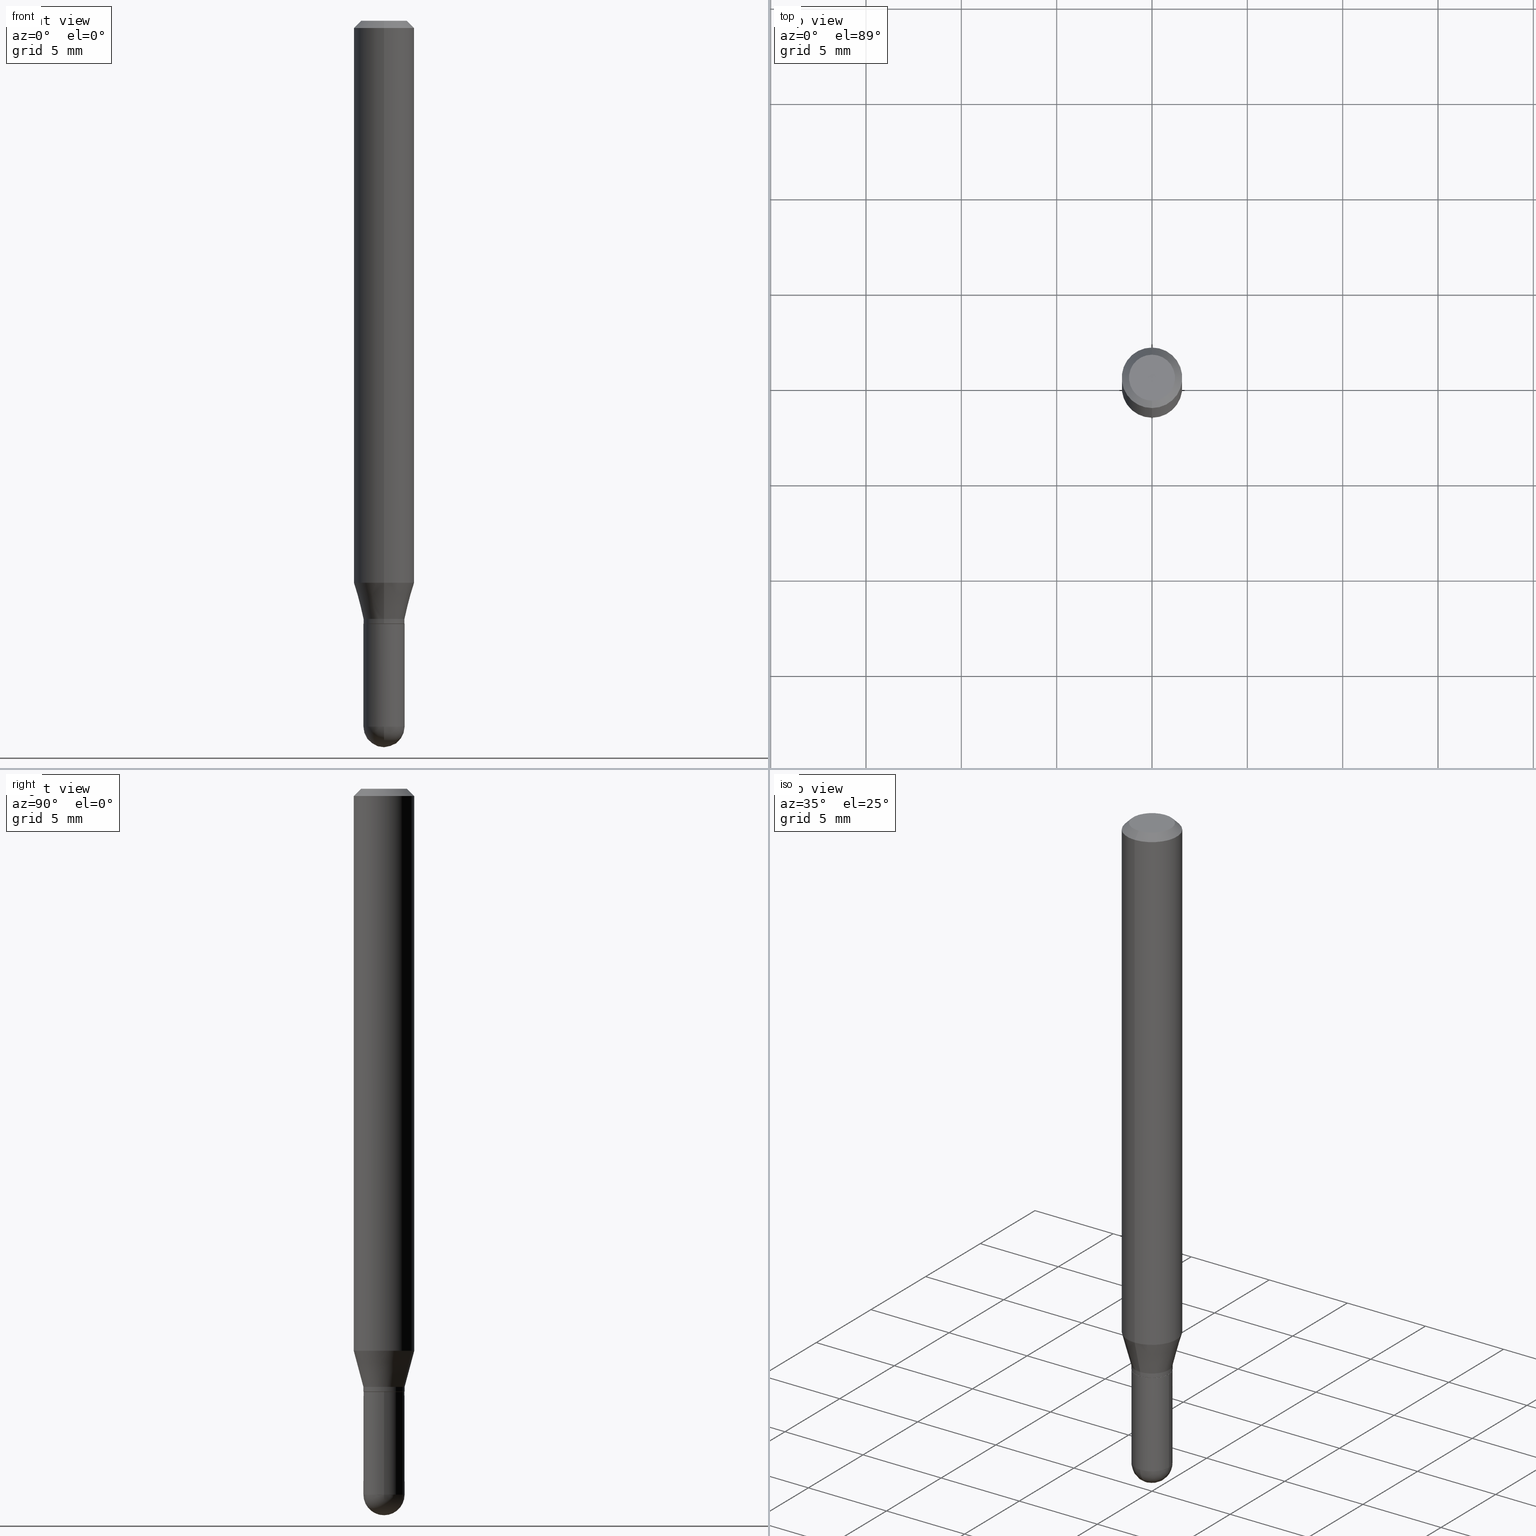
[diagram: canonical four-view strip — front | top / right | iso, engineering-drawing reading convention]
A machine part, canonical four-view strip (front | top / right | iso — engineering-drawing reading convention). The complete STEP part file that produces these views, byte-faithful:
ISO-10303-21;
HEADER;
FILE_DESCRIPTION (( 'STEP AP203' ),
    '1' );
FILE_NAME ('00872.STEP',
    '2024-03-07T18:37:12',
    ( '' ),
    ( '' ),
    'SwSTEP 2.0',
    'SolidWorks 2023',
    '' );
FILE_SCHEMA (( 'CONFIG_CONTROL_DESIGN' ));
ENDSEC;

DATA;
#1 = VERTEX_POINT ( 'NONE', #48 ) ;
#2 = EDGE_CURVE ( 'NONE', #114, #412, #182, .T. ) ;
#3 = EDGE_LOOP ( 'NONE', ( #116, #38, #119, #75 ) ) ;
#4 = ORIENTED_EDGE ( 'NONE', *, *, #463, .F. ) ;
#5 = AXIS2_PLACEMENT_3D ( 'NONE', #452, #96, #255 ) ;
#6 = ADVANCED_FACE ( 'NONE', ( #205 ), #27, .T. ) ;
#7 = PRODUCT_DEFINITION_FORMATION_WITH_SPECIFIED_SOURCE ( 'ANY', '', #383, .NOT_KNOWN. ) ;
#8 = APPROVAL_ROLE ( '' ) ;
#9 = ORIENTED_EDGE ( 'NONE', *, *, #402, .T. ) ;
#10 = LINE ( 'NONE', #330, #28 ) ;
#11 = EDGE_CURVE ( 'NONE', #352, #65, #165, .T. ) ;
#12 = DIRECTION ( 'NONE',  ( 1.000000000000000000, -6.982962677686266711E-15, 4.876176775795935793E-29 ) ) ;
#13 = CARTESIAN_POINT ( 'NONE',  ( 3.668101940829557103E-31, -5.237367030446314018E-17, -0.01500000000000000812 ) ) ;
#14 = CARTESIAN_POINT ( 'NONE',  ( 0.000000000000000000, 0.000000000000000000, 0.000000000000000000 ) ) ;
#15 = CARTESIAN_POINT ( 'NONE',  ( 3.564270785014837509E-29, -5.088834051363884851E-15, -1.457500000000000240 ) ) ;
#16 = AXIS2_PLACEMENT_3D ( 'NONE', #82, #121, #41 ) ;
#17 = AXIS2_PLACEMENT_3D ( 'NONE', #120, #162, #442 ) ;
#18 = EDGE_CURVE ( 'NONE', #36, #352, #136, .T. ) ;
#19 = CARTESIAN_POINT ( 'NONE',  ( 2.837543360476095012E-29, -4.051483923660639019E-15, -1.160358983848622572 ) ) ;
#20 = LENGTH_MEASURE_WITH_UNIT ( LENGTH_MEASURE( 0.02539999999999999897 ), #208 );
#21 = ADVANCED_FACE ( 'NONE', ( #364 ), #56, .T. ) ;
#22 = ORIENTED_EDGE ( 'NONE', *, *, #11, .T. ) ;
#23 = FACE_OUTER_BOUND ( 'NONE', #158, .T. ) ;
#24 = CARTESIAN_POINT ( 'NONE',  ( 3.560636328285825248E-29, -5.094038800260261442E-15, -1.457500000000000240 ) ) ;
#25 = DIRECTION ( 'NONE',  ( -2.445401293886370211E-29, 3.491578020297540772E-15, 1.000000000000000000 ) ) ;
#26 = DIRECTION ( 'NONE',  ( -6.982962677686265922E-15, -1.000000000000000000, 6.504399984914913214E-15 ) ) ;
#27 = CONICAL_SURFACE ( 'NONE', #50, 0.04249999999999991979, 0.2617993877991501850 ) ;
#28 = VECTOR ( 'NONE', #327, 39.37007874015748143 ) ;
#29 = DIRECTION ( 'NONE',  ( -2.445401293886370211E-29, 3.491578020297540772E-15, 1.000000000000000000 ) ) ;
#30 = EDGE_CURVE ( 'NONE', #412, #114, #115, .T. ) ;
#31 = CARTESIAN_POINT ( 'NONE',  ( 3.668101940829557103E-31, -5.237367030446314018E-17, -0.01500000000000000812 ) ) ;
#32 = DIRECTION ( 'NONE',  ( -2.445401293886370211E-29, 3.491578020297540772E-15, 1.000000000000000000 ) ) ;
#33 = LOCAL_TIME ( 13, 37, 12.00000000000000000, #189 ) ;
#34 = CARTESIAN_POINT ( 'NONE',  ( 3.560636328285825248E-29, -5.094038800260261442E-15, -1.457500000000000240 ) ) ;
#35 = DATE_AND_TIME ( #471, #135 ) ;
#36 = VERTEX_POINT ( 'NONE', #248 ) ;
#37 = CIRCLE ( 'NONE', #202, 0.04249999999999995448 ) ;
#38 = ORIENTED_EDGE ( 'NONE', *, *, #493, .T. ) ;
#39 = VERTEX_POINT ( 'NONE', #406 ) ;
#40 = EDGE_CURVE ( 'NONE', #459, #1, #193, .T. ) ;
#41 = DIRECTION ( 'NONE',  ( -6.982962677686266711E-15, -1.000000000000000000, 6.427877632151220009E-15 ) ) ;
#42 = ORIENTED_EDGE ( 'NONE', *, *, #60, .T. ) ;
#43 = CIRCLE ( 'NONE', #334, 0.04249999999999991979 ) ;
#44 = DIRECTION ( 'NONE',  ( -6.982962677686266711E-15, -1.000000000000000000, 3.491578020297541166E-15 ) ) ;
#45 = CYLINDRICAL_SURFACE ( 'NONE', #458, 0.06250000000000000000 ) ;
#46 = FACE_OUTER_BOUND ( 'NONE', #274, .T. ) ;
#47 = DIRECTION ( 'NONE',  ( -2.445401293886370211E-29, 3.491578020297540772E-15, 1.000000000000000000 ) ) ;
#48 = CARTESIAN_POINT ( 'NONE',  ( 3.019806626980733170E-16, 0.04249999999999570788, -1.244500000000000606 ) ) ;
#49 = FACE_OUTER_BOUND ( 'NONE', #215, .T. ) ;
#50 = AXIS2_PLACEMENT_3D ( 'NONE', #131, #25, #246 ) ;
#51 = AXIS2_PLACEMENT_3D ( 'NONE', #31, #331, #329 ) ;
#52 = CC_DESIGN_PERSON_AND_ORGANIZATION_ASSIGNMENT ( #104, #347, ( #7 ) ) ;
#53 = ORIENTED_EDGE ( 'NONE', *, *, #481, .F. ) ;
#54 = DIRECTION ( 'NONE',  ( -2.445401293886369650E-29, 3.491578020297540772E-15, 1.000000000000000000 ) ) ;
#55 = DIRECTION ( 'NONE',  ( 1.000000000000000000, -6.982962677686266711E-15, 4.876176775795935793E-29 ) ) ;
#56 = CYLINDRICAL_SURFACE ( 'NONE', #340, 0.06250000000000000000 ) ;
#57 = DIRECTION ( 'NONE',  ( -1.000000000000000000, 7.105427357601001070E-15, -4.926315508542082329E-29 ) ) ;
#58 = CARTESIAN_POINT ( 'NONE',  ( 3.668101940829557103E-31, -5.237367030446314018E-17, -0.01500000000000000812 ) ) ;
#59 = DIRECTION ( 'NONE',  ( -2.445468806185136597E-29, 3.491481338843145583E-15, 1.000000000000000000 ) ) ;
#60 = EDGE_CURVE ( 'NONE', #236, #352, #409, .T. ) ;
#61 = PERSON_AND_ORGANIZATION ( #77, #103 ) ;
#62 = CIRCLE ( 'NONE', #273, 0.04249999999999995448 ) ;
#63 = APPLICATION_PROTOCOL_DEFINITION ( 'international standard', 'config_control_design', 1994, #187 ) ;
#64 = CARTESIAN_POINT ( 'NONE',  ( 0.000000000000000000, 0.000000000000000000, 0.000000000000000000 ) ) ;
#65 = VERTEX_POINT ( 'NONE', #488 ) ;
#66 = CARTESIAN_POINT ( 'NONE',  ( 2.967759138016967261E-16, 0.04249999999999565237, -1.245000000000000551 ) ) ;
#67 = ORIENTED_EDGE ( 'NONE', *, *, #493, .F. ) ;
#68 = VECTOR ( 'NONE', #456, 39.37007874015748143 ) ;
#69 = VERTEX_POINT ( 'NONE', #198 ) ;
#70 = CARTESIAN_POINT ( 'NONE',  ( 3.564270785014837509E-29, -5.088834051363884851E-15, -1.457500000000000240 ) ) ;
#71 = APPROVAL_STATUS ( 'not_yet_approved' ) ;
#72 = ORIENTED_EDGE ( 'NONE', *, *, #373, .T. ) ;
#73 = DIMENSIONAL_EXPONENTS ( 1.000000000000000000, 0.000000000000000000, 0.000000000000000000, 0.000000000000000000, 0.000000000000000000, 0.000000000000000000, 0.000000000000000000 ) ;
#74 = CONICAL_SURFACE ( 'NONE', #16, 0.04249999999999991979, 0.2617993877991501850 ) ;
#75 = ORIENTED_EDGE ( 'NONE', *, *, #416, .F. ) ;
#76 = CIRCLE ( 'NONE', #341, 0.04250000000000000999 ) ;
#77 = PERSON ( 'UNSPECIFIED', 'UNSPECIFIED', 'UNSPECIFIED', ('UNSPECIFIED'), ('UNSPECIFIED'), ('UNSPECIFIED') ) ;
#78 = SHAPE_DEFINITION_REPRESENTATION ( #172, #133 ) ;
#79 = ORIENTED_EDGE ( 'NONE', *, *, #40, .F. ) ;
#80 = CALENDAR_DATE ( 2024, 7, 3 ) ;
#81 = ORIENTED_EDGE ( 'NONE', *, *, #196, .T. ) ;
#82 = CARTESIAN_POINT ( 'NONE',  ( 3.020070597949667254E-29, -4.312098855067463589E-15, -1.235000000000000098 ) ) ;
#83 = ORIENTED_EDGE ( 'NONE', *, *, #18, .F. ) ;
#84 = LINE ( 'NONE', #492, #219 ) ;
#85 = AXIS2_PLACEMENT_3D ( 'NONE', #378, #29, #336 ) ;
#86 = CARTESIAN_POINT ( 'NONE',  ( 0.04250000000000000999, -5.014640072913468189E-15, -1.457500000000000240 ) ) ;
#87 = DIRECTION ( 'NONE',  ( -2.445401293886370211E-29, 3.491578020297540772E-15, 1.000000000000000000 ) ) ;
#88 = DIRECTION ( 'NONE',  ( 1.000000000000000000, -6.982962677686265133E-15, 0.000000000000000000 ) ) ;
#89 = ORIENTED_EDGE ( 'NONE', *, *, #97, .T. ) ;
#90 = PLANE ( 'NONE',  #398 ) ;
#91 = ADVANCED_FACE ( 'NONE', ( #353 ), #74, .T. ) ;
#92 = DIRECTION ( 'NONE',  ( -2.445468806185136597E-29, 3.491481338843145583E-15, 1.000000000000000000 ) ) ;
#93 = CIRCLE ( 'NONE', #102, 0.04250000000000000999 ) ;
#94 = ORIENTED_EDGE ( 'NONE', *, *, #303, .F. ) ;
#95 = CARTESIAN_POINT ( 'NONE',  ( 3.043301910241588357E-29, -4.345268846260290408E-15, -1.244500000000000384 ) ) ;
#96 = DIRECTION ( 'NONE',  ( -2.445401293886370211E-29, 3.491578020297540772E-15, 1.000000000000000000 ) ) ;
#97 = EDGE_CURVE ( 'NONE', #1, #36, #394, .T. ) ;
#98 = ORIENTED_EDGE ( 'NONE', *, *, #405, .F. ) ;
#99 = FACE_OUTER_BOUND ( 'NONE', #153, .T. ) ;
#100 = CARTESIAN_POINT ( 'NONE',  ( 3.002043058586724733E-16, 0.04199999999999565192, -1.245000000000000551 ) ) ;
#101 = CARTESIAN_POINT ( 'NONE',  ( -2.932844324627926808E-16, -0.04200000000000434636, -1.244999999999999885 ) ) ;
#102 = AXIS2_PLACEMENT_3D ( 'NONE', #106, #59, #264 ) ;
#103 = ORGANIZATION ( 'UNSPECIFIED', 'UNSPECIFIED', '' ) ;
#104 = PERSON_AND_ORGANIZATION ( #77, #103 ) ;
#105 = ORIENTED_EDGE ( 'NONE', *, *, #388, .T. ) ;
#106 = CARTESIAN_POINT ( 'NONE',  ( 3.564270785014837509E-29, -5.088834051363884851E-15, -1.457500000000000240 ) ) ;
#107 = PERSON_AND_ORGANIZATION_ROLE ( 'design_owner' ) ;
#108 = PERSON_AND_ORGANIZATION_ROLE ( 'creator' ) ;
#109 = CONICAL_SURFACE ( 'NONE', #123, 0.06250000000000000000, 0.7853981633974483900 ) ;
#110 = DIRECTION ( 'NONE',  ( -1.000000000000000000, 6.982962677686265922E-15, -4.876176775795935793E-29 ) ) ;
#111 = CIRCLE ( 'NONE', #439, 0.04250000000000000999 ) ;
#112 = ADVANCED_FACE ( 'NONE', ( #237 ), #298, .T. ) ;
#113 = ORIENTED_EDGE ( 'NONE', *, *, #388, .F. ) ;
#114 = VERTEX_POINT ( 'NONE', #478 ) ;
#115 = CIRCLE ( 'NONE', #218, 0.04749999999999999362 ) ;
#116 = ORIENTED_EDGE ( 'NONE', *, *, #374, .F. ) ;
#117 = DATE_TIME_ROLE ( 'classification_date' ) ;
#118 = ORIENTED_EDGE ( 'NONE', *, *, #374, .T. ) ;
#119 = ORIENTED_EDGE ( 'NONE', *, *, #315, .F. ) ;
#120 = CARTESIAN_POINT ( 'NONE',  ( 3.044524610888531721E-29, -4.347014635270438441E-15, -1.245000000000000329 ) ) ;
#121 = DIRECTION ( 'NONE',  ( -2.445401293886370211E-29, 3.491578020297540772E-15, 1.000000000000000000 ) ) ;
#122 = CARTESIAN_POINT ( 'NONE',  ( 3.560636328285825248E-29, -5.094038800260261442E-15, -1.457500000000000240 ) ) ;
#123 = AXIS2_PLACEMENT_3D ( 'NONE', #13, #164, #337 ) ;
#124 = LINE ( 'NONE', #204, #449 ) ;
#125 = DIRECTION ( 'NONE',  ( -2.445401293886370211E-29, 3.491578020297540772E-15, 1.000000000000000000 ) ) ;
#126 = FACE_OUTER_BOUND ( 'NONE', #424, .T. ) ;
#127 = CC_DESIGN_PERSON_AND_ORGANIZATION_ASSIGNMENT ( #231, #151, ( #7 ) ) ;
#128 = DIRECTION ( 'NONE',  ( -2.445401293886370211E-29, 3.491578020297540772E-15, 1.000000000000000000 ) ) ;
#129 = DIRECTION ( 'NONE',  ( -2.445401293886370211E-29, 3.491578020297540772E-15, 1.000000000000000000 ) ) ;
#130 = DIRECTION ( 'NONE',  ( 6.982962677686265922E-15, 1.000000000000000000, -6.427877632151214487E-15 ) ) ;
#131 = CARTESIAN_POINT ( 'NONE',  ( 3.020070597949667254E-29, -4.312098855067463589E-15, -1.235000000000000098 ) ) ;
#132 = CARTESIAN_POINT ( 'NONE',  ( 0.04249999999999999611, -4.643670180661383298E-15, -1.245000000000000329 ) ) ;
#133 = ADVANCED_BREP_SHAPE_REPRESENTATION ( '00872', ( #470, #455, #194 ), #503 ) ;
#134 = CIRCLE ( 'NONE', #85, 0.04249999999999991979 ) ;
#135 = LOCAL_TIME ( 13, 37, 12.00000000000000000, #199 ) ;
#136 = LINE ( 'NONE', #361, #313 ) ;
#137 = CARTESIAN_POINT ( 'NONE',  ( -2.967759138016355400E-16, -0.04250000000000423578, -1.234999999999999876 ) ) ;
#138 = MECHANICAL_CONTEXT ( 'NONE', #276, 'mechanical' ) ;
#139 = DIRECTION ( 'NONE',  ( -6.982962677686266711E-15, -1.000000000000000000, 3.491578020297541166E-15 ) ) ;
#140 = APPROVAL_DATE_TIME ( #180, #230 ) ;
#141 = CIRCLE ( 'NONE', #391, 0.04249999999999999611 ) ;
#142 = DIRECTION ( 'NONE',  ( 2.445401293886369650E-29, -3.491578020297540772E-15, -1.000000000000000000 ) ) ;
#143 = EDGE_CURVE ( 'NONE', #459, #312, #363, .T. ) ;
#144 = DIRECTION ( 'NONE',  ( 0.000000000000000000, 0.000000000000000000, 1.000000000000000000 ) ) ;
#145 =( NAMED_UNIT ( * ) SI_UNIT ( $, .STERADIAN. ) SOLID_ANGLE_UNIT ( ) );
#146 = DIRECTION ( 'NONE',  ( 1.000000000000000000, -6.982962677686265922E-15, 4.883557194083112340E-29 ) ) ;
#147 = EDGE_CURVE ( 'NONE', #354, #1, #124, .T. ) ;
#148 = VECTOR ( 'NONE', #87, 39.37007874015748143 ) ;
#149 = AXIS2_PLACEMENT_3D ( 'NONE', #369, #257, #26 ) ;
#150 = CC_DESIGN_DATE_AND_TIME_ASSIGNMENT ( #423, #500, ( #243 ) ) ;
#151 = PERSON_AND_ORGANIZATION_ROLE ( 'design_supplier' ) ;
#152 = ORIENTED_EDGE ( 'NONE', *, *, #2, .F. ) ;
#153 = EDGE_LOOP ( 'NONE', ( #98, #271, #510, #417, #311 ) ) ;
#154 = APPROVAL_DATE_TIME ( #431, #328 ) ;
#155 = ORIENTED_EDGE ( 'NONE', *, *, #303, .T. ) ;
#156 = VECTOR ( 'NONE', #436, 39.37007874015748143 ) ;
#157 = CONICAL_SURFACE ( 'NONE', #149, 0.04199999999999999567, 0.7853981633974739252 ) ;
#158 = EDGE_LOOP ( 'NONE', ( #454, #89, #275, #233 ) ) ;
#159 = AXIS2_PLACEMENT_3D ( 'NONE', #486, #480, #88 ) ;
#160 = DIRECTION ( 'NONE',  ( 6.982962677686265922E-15, 1.000000000000000000, -3.483106191921935554E-15 ) ) ;
#161 = VERTEX_POINT ( 'NONE', #86 ) ;
#162 = DIRECTION ( 'NONE',  ( -2.445401293886370211E-29, 3.491578020297540772E-15, 1.000000000000000000 ) ) ;
#163 = CARTESIAN_POINT ( 'NONE',  ( 3.044524610888531721E-29, -4.347014635270438441E-15, -1.245000000000000329 ) ) ;
#164 = DIRECTION ( 'NONE',  ( 2.445401293886370211E-29, -3.491578020297540772E-15, -1.000000000000000000 ) ) ;
#165 = LINE ( 'NONE', #287, #148 ) ;
#166 = CARTESIAN_POINT ( 'NONE',  ( 0.000000000000000000, 0.000000000000000000, 0.000000000000000000 ) ) ;
#167 = AXIS2_PLACEMENT_3D ( 'NONE', #367, #128, #170 ) ;
#168 = VECTOR ( 'NONE', #285, 39.37007874015748143 ) ;
#169 = SECURITY_CLASSIFICATION ( '', '', #306 ) ;
#170 = DIRECTION ( 'NONE',  ( -6.982962677686266711E-15, -1.000000000000000000, 6.427877632151220009E-15 ) ) ;
#171 = CARTESIAN_POINT ( 'NONE',  ( 3.666385980913199605E-29, -5.239824382712906867E-15, -1.500000000000000222 ) ) ;
#172 = PRODUCT_DEFINITION_SHAPE ( 'NONE', 'NONE',  #243 ) ;
#173 = SPHERICAL_SURFACE ( 'NONE', #475, 0.04249999999999995448 ) ;
#174 = VERTEX_POINT ( 'NONE', #401 ) ;
#175 = DIRECTION ( 'NONE',  ( -2.445401293886370211E-29, 3.491578020297540772E-15, 1.000000000000000000 ) ) ;
#176 = CARTESIAN_POINT ( 'NONE',  ( 3.316907271900976096E-16, 0.04749999999999999362, -1.702778195755068235E-16 ) ) ;
#177 = CONICAL_SURFACE ( 'NONE', #466, 0.04199999999999999567, 0.7853981633974739252 ) ;
#178 = CARTESIAN_POINT ( 'NONE',  ( -0.04249999999999999611, -4.415883496413758296E-15, -1.245000000000000329 ) ) ;
#179 = FACE_OUTER_BOUND ( 'NONE', #429, .T. ) ;
#180 = DATE_AND_TIME ( #380, #342 ) ;
#181 = ADVANCED_FACE ( 'NONE', ( #46 ), #109, .T. ) ;
#182 = CIRCLE ( 'NONE', #495, 0.04749999999999999362 ) ;
#183 = AXIS2_PLACEMENT_3D ( 'NONE', #19, #326, #213 ) ;
#184 = APPROVAL_PERSON_ORGANIZATION ( #61, #230, #457 ) ;
#185 = APPROVAL_STATUS ( 'not_yet_approved' ) ;
#186 = EDGE_CURVE ( 'NONE', #472, #65, #332, .T. ) ;
#187 = APPLICATION_CONTEXT ( 'configuration controlled 3d designs of mechanical parts and assemblies' ) ;
#188 = DIRECTION ( 'NONE',  ( 6.982962677686266711E-15, 1.000000000000000000, 0.000000000000000000 ) ) ;
#189 = COORDINATED_UNIVERSAL_TIME_OFFSET ( 5, 0, .BEHIND. ) ;
#190 = ADVANCED_FACE ( 'NONE', ( #179 ), #157, .T. ) ;
#191 = ORIENTED_EDGE ( 'NONE', *, *, #509, .T. ) ;
#192 = UNCERTAINTY_MEASURE_WITH_UNIT (LENGTH_MEASURE( 1.000000000000000082E-05 ), #444, 'distance_accuracy_value', 'NONE');
#193 = CIRCLE ( 'NONE', #167, 0.04249999999999991979 ) ;
#194 = AXIS2_PLACEMENT_3D ( 'NONE', #217, #144, #506 ) ;
#195 = ORIENTED_EDGE ( 'NONE', *, *, #481, .T. ) ;
#196 = EDGE_CURVE ( 'NONE', #69, #459, #292, .T. ) ;
#197 = ORIENTED_EDGE ( 'NONE', *, *, #293, .T. ) ;
#198 = CARTESIAN_POINT ( 'NONE',  ( -2.932844324627926808E-16, -0.04200000000000434636, -1.244999999999999885 ) ) ;
#199 = COORDINATED_UNIVERSAL_TIME_OFFSET ( 5, 0, .BEHIND. ) ;
#200 = ORIENTED_EDGE ( 'NONE', *, *, #310, .F. ) ;
#201 = CARTESIAN_POINT ( 'NONE',  ( 3.668101940829557103E-31, -5.237367030446314018E-17, -0.01500000000000000812 ) ) ;
#202 = AXIS2_PLACEMENT_3D ( 'NONE', #34, #146, #188 ) ;
#203 = EDGE_LOOP ( 'NONE', ( #42, #22, #420, #4 ) ) ;
#204 = CARTESIAN_POINT ( 'NONE',  ( 2.984279490192724677E-16, 0.04199999999999565192, -1.245000000000000551 ) ) ;
#205 = FACE_OUTER_BOUND ( 'NONE', #333, .T. ) ;
#206 = CARTESIAN_POINT ( 'NONE',  ( -2.967759138016344061E-16, -0.04250000000000413863, -1.244500000000000162 ) ) ;
#207 = DIRECTION ( 'NONE',  ( -2.445401293886370211E-29, 3.491578020297540772E-15, 1.000000000000000000 ) ) ;
#208 =( LENGTH_UNIT ( ) NAMED_UNIT ( * ) SI_UNIT ( $, .METRE. ) );
#209 = ORIENTED_EDGE ( 'NONE', *, *, #60, .F. ) ;
#210 = DIRECTION ( 'NONE',  ( -6.982962677686265922E-15, -1.000000000000000000, 3.491578020297540772E-15 ) ) ;
#211 = AXIS2_PLACEMENT_3D ( 'NONE', #176, #142, #291 ) ;
#212 = CC_DESIGN_APPROVAL ( #328, ( #169 ) ) ;
#213 = DIRECTION ( 'NONE',  ( -6.982962677686265922E-15, -1.000000000000000000, 4.370956789862821150E-15 ) ) ;
#214 = CARTESIAN_POINT ( 'NONE',  ( 0.000000000000000000, 0.000000000000000000, 0.000000000000000000 ) ) ;
#215 = EDGE_LOOP ( 'NONE', ( #437, #357 ) ) ;
#216 = DIRECTION ( 'NONE',  ( -6.982962677686265922E-15, -1.000000000000000000, 3.483106191921935554E-15 ) ) ;
#217 = CARTESIAN_POINT ( 'NONE',  ( 0.000000000000000000, 0.000000000000000000, 0.000000000000000000 ) ) ;
#218 = AXIS2_PLACEMENT_3D ( 'NONE', #485, #125, #443 ) ;
#219 = VECTOR ( 'NONE', #322, 39.37007874015748143 ) ;
#220 = PLANE ( 'NONE',  #211 ) ;
#221 = DATE_AND_TIME ( #297, #33 ) ;
#222 = CYLINDRICAL_SURFACE ( 'NONE', #474, 0.04249999999999991979 ) ;
#223 = SPHERICAL_SURFACE ( 'NONE', #250, 0.04249999999999995448 ) ;
#224 = ORIENTED_EDGE ( 'NONE', *, *, #11, .F. ) ;
#225 = DIRECTION ( 'NONE',  ( 2.438088387897960049E-29, -3.491481338843145188E-15, -1.000000000000000000 ) ) ;
#226 = ADVANCED_FACE ( 'NONE', ( #445 ), #173, .T. ) ;
#227 = CARTESIAN_POINT ( 'NONE',  ( 3.564270785014837509E-29, -5.088834051363884851E-15, -1.457500000000000240 ) ) ;
#228 = APPROVAL_STATUS ( 'not_yet_approved' ) ;
#229 = ORIENTED_EDGE ( 'NONE', *, *, #30, .T. ) ;
#230 = APPROVAL ( #228, 'UNSPECIFIED' ) ;
#231 = PERSON_AND_ORGANIZATION ( #77, #103 ) ;
#232 = PERSON_AND_ORGANIZATION_ROLE ( 'classification_officer' ) ;
#233 = ORIENTED_EDGE ( 'NONE', *, *, #143, .F. ) ;
#234 = CIRCLE ( 'NONE', #17, 0.04199999999999999567 ) ;
#235 = VERTEX_POINT ( 'NONE', #178 ) ;
#236 = VERTEX_POINT ( 'NONE', #408 ) ;
#237 = FACE_OUTER_BOUND ( 'NONE', #317, .T. ) ;
#238 = EDGE_CURVE ( 'NONE', #69, #354, #450, .T. ) ;
#239 = ORIENTED_EDGE ( 'NONE', *, *, #18, .T. ) ;
#240 = CIRCLE ( 'NONE', #511, 0.04249999999999991979 ) ;
#241 = ORIENTED_EDGE ( 'NONE', *, *, #143, .T. ) ;
#242 = DIRECTION ( 'NONE',  ( 4.937700262164548042E-15, 0.7071067811865451302, -0.7071067811865499042 ) ) ;
#243 = PRODUCT_DEFINITION ( 'UNKNOWN', '', #7, #512 ) ;
#244 = DIRECTION ( 'NONE',  ( 2.445401293886370211E-29, -3.491578020297540772E-15, -1.000000000000000000 ) ) ;
#245 = DIRECTION ( 'NONE',  ( 1.839019923739599526E-15, 0.2588190451025248473, 0.9659258262890670910 ) ) ;
#246 = DIRECTION ( 'NONE',  ( -6.982962677686266711E-15, -1.000000000000000000, 6.427877632151220009E-15 ) ) ;
#247 = VECTOR ( 'NONE', #433, 39.37007874015748143 ) ;
#248 = CARTESIAN_POINT ( 'NONE',  ( 3.730349362740815744E-16, 0.04249999999999561073, -1.235000000000000320 ) ) ;
#249 = CARTESIAN_POINT ( 'NONE',  ( 3.044524610888531721E-29, -4.347014635270438441E-15, -1.245000000000000329 ) ) ;
#250 = AXIS2_PLACEMENT_3D ( 'NONE', #24, #301, #296 ) ;
#251 = AXIS2_PLACEMENT_3D ( 'NONE', #499, #494, #286 ) ;
#252 = LOCAL_TIME ( 13, 37, 12.00000000000000000, #307 ) ;
#253 = ADVANCED_FACE ( 'NONE', ( #99 ), #411, .T. ) ;
#254 = CARTESIAN_POINT ( 'NONE',  ( -4.364351673553916201E-16, -0.06250000000000000000, 2.182236262685962982E-16 ) ) ;
#255 = DIRECTION ( 'NONE',  ( -6.982962677686266711E-15, -1.000000000000000000, 3.491578020297541166E-15 ) ) ;
#256 = ORIENTED_EDGE ( 'NONE', *, *, #396, .T. ) ;
#257 = DIRECTION ( 'NONE',  ( -2.445401293886370211E-29, 3.491578020297540772E-15, 1.000000000000000000 ) ) ;
#258 = FACE_OUTER_BOUND ( 'NONE', #482, .T. ) ;
#259 = COORDINATED_UNIVERSAL_TIME_OFFSET ( 5, 0, .BEHIND. ) ;
#260 = AXIS2_PLACEMENT_3D ( 'NONE', #371, #365, #12 ) ;
#261 = FACE_OUTER_BOUND ( 'NONE', #300, .T. ) ;
#262 = CC_DESIGN_APPROVAL ( #230, ( #7 ) ) ;
#263 = ORIENTED_EDGE ( 'NONE', *, *, #147, .T. ) ;
#264 = DIRECTION ( 'NONE',  ( 1.000000000000000000, -6.982962677686273810E-15, 0.000000000000000000 ) ) ;
#265 = CALENDAR_DATE ( 2024, 7, 3 ) ;
#266 = ORIENTED_EDGE ( 'NONE', *, *, #416, .T. ) ;
#267 = ADVANCED_FACE ( 'NONE', ( #261 ), #222, .T. ) ;
#268 = VECTOR ( 'NONE', #270, 39.37007874015748143 ) ;
#269 = CC_DESIGN_SECURITY_CLASSIFICATION ( #169, ( #7 ) ) ;
#270 = DIRECTION ( 'NONE',  ( -4.851104656540964275E-15, -0.7071067811865500152, -0.7071067811865450192 ) ) ;
#271 = ORIENTED_EDGE ( 'NONE', *, *, #315, .T. ) ;
#272 = ORIENTED_EDGE ( 'NONE', *, *, #2, .T. ) ;
#273 = AXIS2_PLACEMENT_3D ( 'NONE', #122, #57, #282 ) ;
#274 = EDGE_LOOP ( 'NONE', ( #152, #105, #280, #395 ) ) ;
#275 = ORIENTED_EDGE ( 'NONE', *, *, #349, .F. ) ;
#276 = APPLICATION_CONTEXT ( 'configuration controlled 3d designs of mechanical parts and assemblies' ) ;
#277 = ADVANCED_FACE ( 'NONE', ( #23 ), #290, .T. ) ;
#278 = CARTESIAN_POINT ( 'NONE',  ( -2.967759138016657633E-16, -0.04249999999999991979, 1.483920658626452146E-16 ) ) ;
#279 = PRODUCT_RELATED_PRODUCT_CATEGORY ( 'detail', '', ( #383 ) ) ;
#280 = ORIENTED_EDGE ( 'NONE', *, *, #186, .T. ) ;
#281 = DIRECTION ( 'NONE',  ( 1.000000000000000000, -6.982962677686265133E-15, 0.000000000000000000 ) ) ;
#282 = DIRECTION ( 'NONE',  ( -7.105427357601001070E-15, -1.000000000000000000, 0.000000000000000000 ) ) ;
#283 = DIRECTION ( 'NONE',  ( -2.445401293886370211E-29, 3.491578020297540772E-15, 1.000000000000000000 ) ) ;
#284 = EDGE_LOOP ( 'NONE', ( #67, #118, #403, #346 ) ) ;
#285 = DIRECTION ( 'NONE',  ( -2.445401293886370211E-29, 3.491578020297540772E-15, 1.000000000000000000 ) ) ;
#286 = DIRECTION ( 'NONE',  ( -6.982962677686265922E-15, -1.000000000000000000, 6.504399984914913214E-15 ) ) ;
#287 = CARTESIAN_POINT ( 'NONE',  ( 4.440892098500625669E-16, 0.06250000000000000000, -2.182236262685962982E-16 ) ) ;
#288 = DIRECTION ( 'NONE',  ( -2.445468806185136597E-29, 3.491481338843145583E-15, 1.000000000000000000 ) ) ;
#289 = AXIS2_PLACEMENT_3D ( 'NONE', #64, #295, #55 ) ;
#290 = CYLINDRICAL_SURFACE ( 'NONE', #5, 0.04249999999999991979 ) ;
#291 = DIRECTION ( 'NONE',  ( 6.982962677686265922E-15, 1.000000000000000000, -3.491578020297540772E-15 ) ) ;
#292 = LINE ( 'NONE', #101, #68 ) ;
#293 = EDGE_CURVE ( 'NONE', #65, #472, #323, .T. ) ;
#294 = CARTESIAN_POINT ( 'NONE',  ( 4.440892098500911138E-16, 0.06249999999999597544, -1.160358983848622794 ) ) ;
#295 = DIRECTION ( 'NONE',  ( -2.445468806185136597E-29, 3.491481338843145583E-15, 1.000000000000000000 ) ) ;
#296 = DIRECTION ( 'NONE',  ( 6.982962677686265922E-15, 1.000000000000000000, -6.427877632151214487E-15 ) ) ;
#297 = CALENDAR_DATE ( 2024, 7, 3 ) ;
#298 = CONICAL_SURFACE ( 'NONE', #366, 0.06250000000000000000, 0.7853981633974483900 ) ;
#299 = AXIS2_PLACEMENT_3D ( 'NONE', #58, #335, #216 ) ;
#300 = EDGE_LOOP ( 'NONE', ( #479, #195, #241, #498 ) ) ;
#301 = DIRECTION ( 'NONE',  ( -1.000000000000000000, 6.982962677686265922E-15, -4.883557194083112901E-29 ) ) ;
#302 = APPROVAL_DATE_TIME ( #221, #377 ) ;
#303 = EDGE_CURVE ( 'NONE', #312, #236, #376, .T. ) ;
#304 = FACE_OUTER_BOUND ( 'NONE', #351, .T. ) ;
#305 = CC_DESIGN_PERSON_AND_ORGANIZATION_ASSIGNMENT ( #427, #232, ( #169 ) ) ;
#306 = SECURITY_CLASSIFICATION_LEVEL ( 'unclassified' ) ;
#307 = COORDINATED_UNIVERSAL_TIME_OFFSET ( 5, 0, .BEHIND. ) ;
#308 = EDGE_LOOP ( 'NONE', ( #224, #507, #469, #348 ) ) ;
#309 = ADVANCED_FACE ( 'NONE', ( #338 ), #223, .T. ) ;
#310 = EDGE_CURVE ( 'NONE', #352, #236, #314, .T. ) ;
#311 = ORIENTED_EDGE ( 'NONE', *, *, #396, .F. ) ;
#312 = VERTEX_POINT ( 'NONE', #137 ) ;
#313 = VECTOR ( 'NONE', #245, 39.37007874015748143 ) ;
#314 = CIRCLE ( 'NONE', #379, 0.06250000000000000000 ) ;
#315 = EDGE_CURVE ( 'NONE', #39, #435, #76, .T. ) ;
#316 = APPROVAL_PERSON_ORGANIZATION ( #434, #328, #8 ) ;
#317 = EDGE_LOOP ( 'NONE', ( #113, #446, #428, #197 ) ) ;
#318 = ADVANCED_FACE ( 'NONE', ( #258 ), #220, .F. ) ;
#319 = ORIENTED_EDGE ( 'NONE', *, *, #509, .F. ) ;
#320 = DIRECTION ( 'NONE',  ( -2.445401293886370211E-29, 3.491578020297540772E-15, 1.000000000000000000 ) ) ;
#321 = EDGE_CURVE ( 'NONE', #435, #161, #93, .T. ) ;
#322 = DIRECTION ( 'NONE',  ( -2.445468806185136877E-29, 3.491481338843145188E-15, 1.000000000000000000 ) ) ;
#323 = CIRCLE ( 'NONE', #299, 0.06250000000000000000 ) ;
#324 = DIRECTION ( 'NONE',  ( -6.982962677686265922E-15, -1.000000000000000000, 3.491578020297540772E-15 ) ) ;
#325 = DIRECTION ( 'NONE',  ( -6.982962677686265922E-15, -1.000000000000000000, 3.491578020297540772E-15 ) ) ;
#326 = DIRECTION ( 'NONE',  ( -2.445401293886370211E-29, 3.491578020297540772E-15, 1.000000000000000000 ) ) ;
#327 = DIRECTION ( 'NONE',  ( -2.445468806185136877E-29, 3.491481338843145188E-15, 1.000000000000000000 ) ) ;
#328 = APPROVAL ( #71, 'UNSPECIFIED' ) ;
#329 = DIRECTION ( 'NONE',  ( -6.982962677686265922E-15, -1.000000000000000000, 3.483106191921935554E-15 ) ) ;
#330 = CARTESIAN_POINT ( 'NONE',  ( -0.04250000000000000999, 3.019806626980426500E-16, -2.090547413358335560E-30 ) ) ;
#331 = DIRECTION ( 'NONE',  ( -2.445401293886370211E-29, 3.491578020297540772E-15, 1.000000000000000000 ) ) ;
#332 = CIRCLE ( 'NONE', #51, 0.06250000000000000000 ) ;
#333 = EDGE_LOOP ( 'NONE', ( #468, #239, #209, #94 ) ) ;
#334 = AXIS2_PLACEMENT_3D ( 'NONE', #448, #47, #400 ) ;
#335 = DIRECTION ( 'NONE',  ( -2.445401293886370211E-29, 3.491578020297540772E-15, 1.000000000000000000 ) ) ;
#336 = DIRECTION ( 'NONE',  ( -6.982962677686266711E-15, -1.000000000000000000, 6.427877632151220009E-15 ) ) ;
#337 = DIRECTION ( 'NONE',  ( 6.982962677686265922E-15, 1.000000000000000000, -3.483106191921935554E-15 ) ) ;
#338 = FACE_OUTER_BOUND ( 'NONE', #284, .T. ) ;
#339 = DIRECTION ( 'NONE',  ( -6.982962677686265922E-15, -1.000000000000000000, 4.370956789862821150E-15 ) ) ;
#340 = AXIS2_PLACEMENT_3D ( 'NONE', #14, #283, #324 ) ;
#341 = AXIS2_PLACEMENT_3D ( 'NONE', #227, #501, #461 ) ;
#342 = LOCAL_TIME ( 13, 37, 12.00000000000000000, #259 ) ;
#343 = APPROVAL_ROLE ( '' ) ;
#344 = LINE ( 'NONE', #465, #268 ) ;
#345 = COORDINATED_UNIVERSAL_TIME_OFFSET ( 5, 0, .BEHIND. ) ;
#346 = ORIENTED_EDGE ( 'NONE', *, *, #321, .F. ) ;
#347 = PERSON_AND_ORGANIZATION_ROLE ( 'creator' ) ;
#348 = ORIENTED_EDGE ( 'NONE', *, *, #293, .F. ) ;
#349 = EDGE_CURVE ( 'NONE', #312, #36, #134, .T. ) ;
#350 = VECTOR ( 'NONE', #242, 39.37007874015748143 ) ;
#351 = EDGE_LOOP ( 'NONE', ( #266, #392, #319, #370, #72 ) ) ;
#352 = VERTEX_POINT ( 'NONE', #294 ) ;
#353 = FACE_OUTER_BOUND ( 'NONE', #375, .T. ) ;
#354 = VERTEX_POINT ( 'NONE', #100 ) ;
#355 = VECTOR ( 'NONE', #393, 39.37007874015749564 ) ;
#356 = ADVANCED_FACE ( 'NONE', ( #415 ), #418, .F. ) ;
#357 = ORIENTED_EDGE ( 'NONE', *, *, #508, .F. ) ;
#358 = LINE ( 'NONE', #254, #168 ) ;
#359 = CC_DESIGN_DATE_AND_TIME_ASSIGNMENT ( #35, #117, ( #169 ) ) ;
#360 = DIRECTION ( 'NONE',  ( 5.024295867788190974E-15, 0.7071067811865681119, 0.7071067811865270336 ) ) ;
#361 = CARTESIAN_POINT ( 'NONE',  ( 3.019806626980721830E-16, 0.04249999999999561073, -1.235000000000000320 ) ) ;
#362 = CARTESIAN_POINT ( 'NONE',  ( -3.019806626980067075E-16, -0.04250000000000507538, -1.457500000000000018 ) ) ;
#363 = LINE ( 'NONE', #278, #156 ) ;
#364 = FACE_OUTER_BOUND ( 'NONE', #308, .T. ) ;
#365 = DIRECTION ( 'NONE',  ( -2.445468806185136597E-29, 3.491481338843145583E-15, 1.000000000000000000 ) ) ;
#366 = AXIS2_PLACEMENT_3D ( 'NONE', #201, #244, #160 ) ;
#367 = CARTESIAN_POINT ( 'NONE',  ( 3.043301910241588357E-29, -4.345268846260290408E-15, -1.244500000000000384 ) ) ;
#368 = DIRECTION ( 'NONE',  ( -6.982962677686265922E-15, -1.000000000000000000, 6.504399984914913214E-15 ) ) ;
#369 = CARTESIAN_POINT ( 'NONE',  ( 3.044524610888531721E-29, -4.347014635270438441E-15, -1.245000000000000329 ) ) ;
#370 = ORIENTED_EDGE ( 'NONE', *, *, #447, .F. ) ;
#371 = CARTESIAN_POINT ( 'NONE',  ( 0.000000000000000000, 0.000000000000000000, 0.000000000000000000 ) ) ;
#372 = DIRECTION ( 'NONE',  ( -2.445401293886370211E-29, 3.491578020297540772E-15, 1.000000000000000000 ) ) ;
#373 = EDGE_CURVE ( 'NONE', #161, #174, #496, .T. ) ;
#374 = EDGE_CURVE ( 'NONE', #397, #174, #37, .T. ) ;
#375 = EDGE_LOOP ( 'NONE', ( #83, #9, #155, #200 ) ) ;
#376 = LINE ( 'NONE', #421, #355 ) ;
#377 = APPROVAL ( #185, 'UNSPECIFIED' ) ;
#378 = CARTESIAN_POINT ( 'NONE',  ( 3.020070597949667254E-29, -4.312098855067463589E-15, -1.235000000000000098 ) ) ;
#379 = AXIS2_PLACEMENT_3D ( 'NONE', #422, #32, #339 ) ;
#380 = CALENDAR_DATE ( 2024, 7, 3 ) ;
#381 =( NAMED_UNIT ( * ) PLANE_ANGLE_UNIT ( ) SI_UNIT ( $, .RADIAN. ) );
#382 = ORIENTED_EDGE ( 'NONE', *, *, #238, .T. ) ;
#383 = PRODUCT ( '00872', '00872', '', ( #138 ) ) ;
#384 = PERSON_AND_ORGANIZATION ( #77, #103 ) ;
#385 = CLOSED_SHELL ( 'NONE', ( #277, #190, #181, #487, #6, #91, #21, #112, #318, #430, #440, #267 ) ) ;
#386 = CIRCLE ( 'NONE', #159, 0.04249999999999999611 ) ;
#387 = DIRECTION ( 'NONE',  ( 1.000000000000000000, -6.982962677686273810E-15, 0.000000000000000000 ) ) ;
#388 = EDGE_CURVE ( 'NONE', #114, #472, #344, .T. ) ;
#389 = ADVANCED_FACE ( 'NONE', ( #304 ), #505, .T. ) ;
#390 = VERTEX_POINT ( 'NONE', #132 ) ;
#391 = AXIS2_PLACEMENT_3D ( 'NONE', #404, #288, #281 ) ;
#392 = ORIENTED_EDGE ( 'NONE', *, *, #405, .T. ) ;
#393 = DIRECTION ( 'NONE',  ( -1.807323732225329350E-15, -0.2588190451025180194, 0.9659258262890689783 ) ) ;
#394 = LINE ( 'NONE', #476, #247 ) ;
#395 = ORIENTED_EDGE ( 'NONE', *, *, #464, .F. ) ;
#396 = EDGE_CURVE ( 'NONE', #235, #390, #141, .T. ) ;
#397 = VERTEX_POINT ( 'NONE', #171 ) ;
#398 = AXIS2_PLACEMENT_3D ( 'NONE', #249, #54, #210 ) ;
#399 = ORIENTED_EDGE ( 'NONE', *, *, #147, .F. ) ;
#400 = DIRECTION ( 'NONE',  ( -6.982962677686266711E-15, -1.000000000000000000, 6.427877632151220009E-15 ) ) ;
#401 = CARTESIAN_POINT ( 'NONE',  ( 2.967759138017017551E-16, 0.04249999999999488215, -1.457500000000000462 ) ) ;
#402 = EDGE_CURVE ( 'NONE', #36, #312, #43, .T. ) ;
#403 = ORIENTED_EDGE ( 'NONE', *, *, #373, .F. ) ;
#404 = CARTESIAN_POINT ( 'NONE',  ( 3.044608663700495534E-29, -4.346894266859716647E-15, -1.245000000000000329 ) ) ;
#405 = EDGE_CURVE ( 'NONE', #39, #235, #10, .T. ) ;
#406 = CARTESIAN_POINT ( 'NONE',  ( -0.04250000000000000999, -4.415883496413759874E-15, -1.457500000000000240 ) ) ;
#407 = DIRECTION ( 'NONE',  ( 1.000000000000000000, -6.982962677686273810E-15, 0.000000000000000000 ) ) ;
#408 = CARTESIAN_POINT ( 'NONE',  ( -4.364351673553629253E-16, -0.06250000000000401068, -1.160358983848622128 ) ) ;
#409 = CIRCLE ( 'NONE', #183, 0.06250000000000000000 ) ;
#410 = FACE_OUTER_BOUND ( 'NONE', #203, .T. ) ;
#411 = CYLINDRICAL_SURFACE ( 'NONE', #289, 0.04250000000000000999 ) ;
#412 = VERTEX_POINT ( 'NONE', #438 ) ;
#413 = CARTESIAN_POINT ( 'NONE',  ( -4.364351673553912750E-16, -0.06250000000000005551, -0.01499999999999979128 ) ) ;
#414 = DIRECTION ( 'NONE',  ( -1.000000000000000000, 6.982962677686265922E-15, -4.883557194083112901E-29 ) ) ;
#415 = FACE_OUTER_BOUND ( 'NONE', #477, .T. ) ;
#416 = EDGE_CURVE ( 'NONE', #174, #39, #111, .T. ) ;
#417 = ORIENTED_EDGE ( 'NONE', *, *, #447, .T. ) ;
#418 = PLANE ( 'NONE',  #502 ) ;
#419 = CC_DESIGN_PERSON_AND_ORGANIZATION_ASSIGNMENT ( #462, #108, ( #243 ) ) ;
#420 = ORIENTED_EDGE ( 'NONE', *, *, #186, .F. ) ;
#421 = CARTESIAN_POINT ( 'NONE',  ( -2.967759138016355400E-16, -0.04250000000000423578, -1.234999999999999876 ) ) ;
#422 = CARTESIAN_POINT ( 'NONE',  ( 2.837543360476095012E-29, -4.051483923660639019E-15, -1.160358983848622572 ) ) ;
#423 = DATE_AND_TIME ( #265, #467 ) ;
#424 = EDGE_LOOP ( 'NONE', ( #399, #432, #81, #53 ) ) ;
#425 = AXIS2_PLACEMENT_3D ( 'NONE', #70, #426, #387 ) ;
#426 = DIRECTION ( 'NONE',  ( -2.445468806185136597E-29, 3.491481338843145583E-15, 1.000000000000000000 ) ) ;
#427 = PERSON_AND_ORGANIZATION ( #77, #103 ) ;
#428 = ORIENTED_EDGE ( 'NONE', *, *, #464, .T. ) ;
#429 = EDGE_LOOP ( 'NONE', ( #382, #263, #79, #491 ) ) ;
#430 = ADVANCED_FACE ( 'NONE', ( #49 ), #90, .F. ) ;
#431 = DATE_AND_TIME ( #80, #252 ) ;
#432 = ORIENTED_EDGE ( 'NONE', *, *, #508, .T. ) ;
#433 = DIRECTION ( 'NONE',  ( -2.445401293886370211E-29, 3.491578020297540772E-15, 1.000000000000000000 ) ) ;
#434 = PERSON_AND_ORGANIZATION ( #77, #103 ) ;
#435 = VERTEX_POINT ( 'NONE', #362 ) ;
#436 = DIRECTION ( 'NONE',  ( -2.445401293886370211E-29, 3.491578020297540772E-15, 1.000000000000000000 ) ) ;
#437 = ORIENTED_EDGE ( 'NONE', *, *, #238, .F. ) ;
#438 = CARTESIAN_POINT ( 'NONE',  ( 3.840629472727447874E-16, 0.04749999999999999362, -1.747056831868805136E-16 ) ) ;
#439 = AXIS2_PLACEMENT_3D ( 'NONE', #15, #92, #407 ) ;
#440 = ADVANCED_FACE ( 'NONE', ( #126 ), #177, .T. ) ;
#441 = CARTESIAN_POINT ( 'NONE',  ( 2.165580680881109028E-46, -3.092046252469518699E-32, -8.855727222747337073E-18 ) ) ;
#442 = DIRECTION ( 'NONE',  ( -6.982962677686265922E-15, -1.000000000000000000, 6.504399984914913214E-15 ) ) ;
#443 = DIRECTION ( 'NONE',  ( -6.982962677686266711E-15, -1.000000000000000000, 3.491578020297541166E-15 ) ) ;
#444 =( CONVERSION_BASED_UNIT ( 'INCH', #20 ) LENGTH_UNIT ( ) NAMED_UNIT ( #73 ) );
#445 = FACE_OUTER_BOUND ( 'NONE', #3, .T. ) ;
#446 = ORIENTED_EDGE ( 'NONE', *, *, #30, .F. ) ;
#447 = EDGE_CURVE ( 'NONE', #161, #390, #84, .T. ) ;
#448 = CARTESIAN_POINT ( 'NONE',  ( 3.020070597949667254E-29, -4.312098855067463589E-15, -1.235000000000000098 ) ) ;
#449 = VECTOR ( 'NONE', #360, 39.37007874015748143 ) ;
#450 = CIRCLE ( 'NONE', #251, 0.04199999999999999567 ) ;
#451 = LINE ( 'NONE', #489, #350 ) ;
#452 = CARTESIAN_POINT ( 'NONE',  ( 0.000000000000000000, 0.000000000000000000, 0.000000000000000000 ) ) ;
#453 = CC_DESIGN_PERSON_AND_ORGANIZATION_ASSIGNMENT ( #460, #107, ( #383 ) ) ;
#454 = ORIENTED_EDGE ( 'NONE', *, *, #40, .T. ) ;
#455 = MANIFOLD_SOLID_BREP ( 'Body-Move/Copy2[2]', #385 ) ;
#456 = DIRECTION ( 'NONE',  ( -4.937700262164674260E-15, -0.7071067811865632269, 0.7071067811865319186 ) ) ;
#457 = APPROVAL_ROLE ( '' ) ;
#458 = AXIS2_PLACEMENT_3D ( 'NONE', #166, #320, #325 ) ;
#459 = VERTEX_POINT ( 'NONE', #206 ) ;
#460 = PERSON_AND_ORGANIZATION ( #77, #103 ) ;
#461 = DIRECTION ( 'NONE',  ( 1.000000000000000000, -6.982962677686273810E-15, 0.000000000000000000 ) ) ;
#462 = PERSON_AND_ORGANIZATION ( #77, #103 ) ;
#463 = EDGE_CURVE ( 'NONE', #236, #472, #358, .T. ) ;
#464 = EDGE_CURVE ( 'NONE', #412, #65, #451, .T. ) ;
#465 = CARTESIAN_POINT ( 'NONE',  ( -4.287811248607203282E-16, -0.06250000000000005551, -0.01499999999999979128 ) ) ;
#466 = AXIS2_PLACEMENT_3D ( 'NONE', #163, #175, #368 ) ;
#467 = LOCAL_TIME ( 13, 37, 12.00000000000000000, #345 ) ;
#468 = ORIENTED_EDGE ( 'NONE', *, *, #349, .T. ) ;
#469 = ORIENTED_EDGE ( 'NONE', *, *, #463, .T. ) ;
#470 = MANIFOLD_SOLID_BREP ( 'Body-Move/Copy2[1]', #473 ) ;
#471 = CALENDAR_DATE ( 2024, 7, 3 ) ;
#472 = VERTEX_POINT ( 'NONE', #413 ) ;
#473 = CLOSED_SHELL ( 'NONE', ( #389, #226, #356, #309, #253 ) ) ;
#474 = AXIS2_PLACEMENT_3D ( 'NONE', #214, #372, #139 ) ;
#475 = AXIS2_PLACEMENT_3D ( 'NONE', #490, #414, #130 ) ;
#476 = CARTESIAN_POINT ( 'NONE',  ( 3.019806626980419597E-16, 0.04249999999999991979, -1.483920658626452146E-16 ) ) ;
#477 = EDGE_LOOP ( 'NONE', ( #191, #256 ) ) ;
#478 = CARTESIAN_POINT ( 'NONE',  ( -3.773273898774340269E-16, -0.04749999999999999362, 1.569942287413858518E-16 ) ) ;
#479 = ORIENTED_EDGE ( 'NONE', *, *, #97, .F. ) ;
#480 = DIRECTION ( 'NONE',  ( -2.445468806185136597E-29, 3.491481338843145583E-15, 1.000000000000000000 ) ) ;
#481 = EDGE_CURVE ( 'NONE', #1, #459, #240, .T. ) ;
#482 = EDGE_LOOP ( 'NONE', ( #229, #272 ) ) ;
#483 = DIRECTION ( 'NONE',  ( -6.982962677686266711E-15, -1.000000000000000000, 6.427877632151220009E-15 ) ) ;
#484 = APPROVAL_PERSON_ORGANIZATION ( #384, #377, #343 ) ;
#485 = CARTESIAN_POINT ( 'NONE',  ( 2.165580680881109028E-46, -3.092046252469518699E-32, -8.855727222747337073E-18 ) ) ;
#486 = CARTESIAN_POINT ( 'NONE',  ( 3.044608663700495534E-29, -4.346894266859716647E-15, -1.245000000000000329 ) ) ;
#487 = ADVANCED_FACE ( 'NONE', ( #410 ), #45, .T. ) ;
#488 = CARTESIAN_POINT ( 'NONE',  ( 4.440892098500911138E-16, 0.06249999999999995143, -0.01500000000000022669 ) ) ;
#489 = CARTESIAN_POINT ( 'NONE',  ( 4.364351673553919652E-16, 0.06249999999999995143, -0.01500000000000022669 ) ) ;
#490 = CARTESIAN_POINT ( 'NONE',  ( 3.560636328285825248E-29, -5.094038800260261442E-15, -1.457500000000000240 ) ) ;
#491 = ORIENTED_EDGE ( 'NONE', *, *, #196, .F. ) ;
#492 = CARTESIAN_POINT ( 'NONE',  ( 0.04250000000000000999, -2.967759138016664042E-16, 2.072375129713273202E-30 ) ) ;
#493 = EDGE_CURVE ( 'NONE', #397, #435, #62, .T. ) ;
#494 = DIRECTION ( 'NONE',  ( -2.445401293886370211E-29, 3.491578020297540772E-15, 1.000000000000000000 ) ) ;
#495 = AXIS2_PLACEMENT_3D ( 'NONE', #441, #207, #44 ) ;
#496 = CIRCLE ( 'NONE', #425, 0.04250000000000000999 ) ;
#497 = CC_DESIGN_APPROVAL ( #377, ( #243 ) ) ;
#498 = ORIENTED_EDGE ( 'NONE', *, *, #402, .F. ) ;
#499 = CARTESIAN_POINT ( 'NONE',  ( 3.044524610888531721E-29, -4.347014635270438441E-15, -1.245000000000000329 ) ) ;
#500 = DATE_TIME_ROLE ( 'creation_date' ) ;
#501 = DIRECTION ( 'NONE',  ( -2.445468806185136597E-29, 3.491481338843145583E-15, 1.000000000000000000 ) ) ;
#502 = AXIS2_PLACEMENT_3D ( 'NONE', #66, #225, #110 ) ;
#503 =( GEOMETRIC_REPRESENTATION_CONTEXT ( 3 ) GLOBAL_UNCERTAINTY_ASSIGNED_CONTEXT ( ( #192 ) ) GLOBAL_UNIT_ASSIGNED_CONTEXT ( ( #444, #381, #145 ) ) REPRESENTATION_CONTEXT ( 'NONE', 'WORKASPACE' ) );
#504 = APPLICATION_PROTOCOL_DEFINITION ( 'international standard', 'config_control_design', 1994, #276 ) ;
#505 = CYLINDRICAL_SURFACE ( 'NONE', #260, 0.04250000000000000999 ) ;
#506 = DIRECTION ( 'NONE',  ( 1.000000000000000000, 0.000000000000000000, 0.000000000000000000 ) ) ;
#507 = ORIENTED_EDGE ( 'NONE', *, *, #310, .T. ) ;
#508 = EDGE_CURVE ( 'NONE', #354, #69, #234, .T. ) ;
#509 = EDGE_CURVE ( 'NONE', #390, #235, #386, .T. ) ;
#510 = ORIENTED_EDGE ( 'NONE', *, *, #321, .T. ) ;
#511 = AXIS2_PLACEMENT_3D ( 'NONE', #95, #129, #483 ) ;
#512 = DESIGN_CONTEXT ( 'detailed design', #187, 'design' ) ;
ENDSEC;
END-ISO-10303-21;
